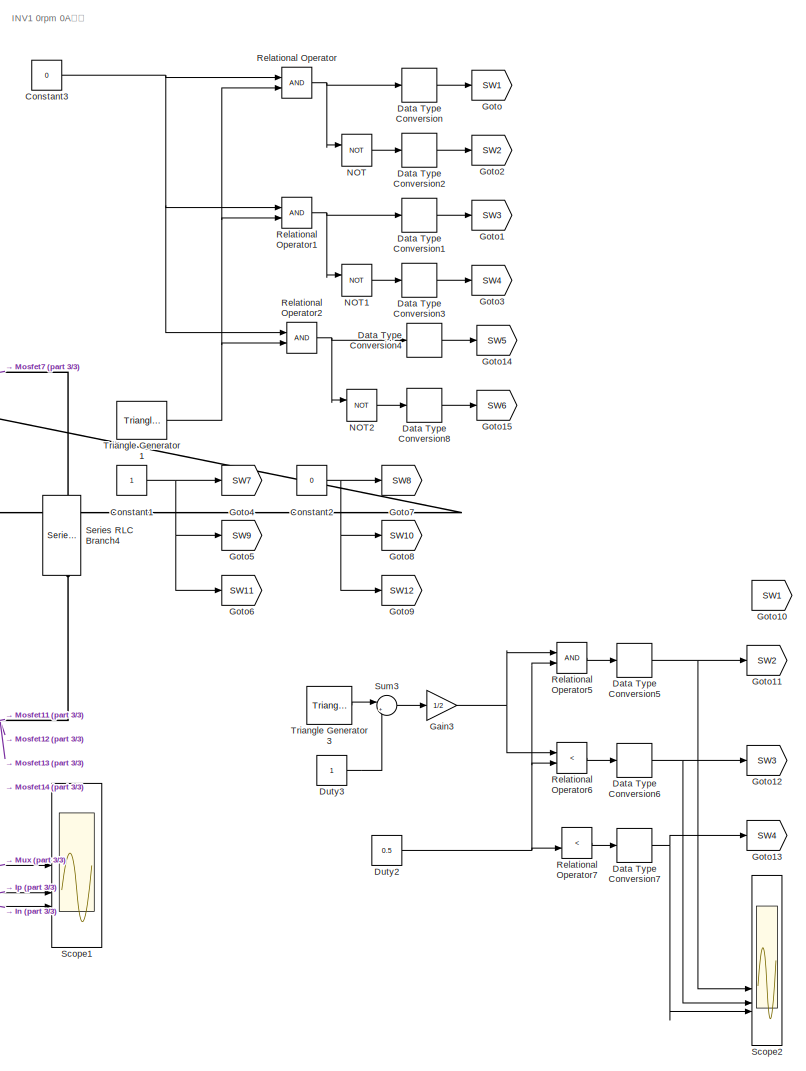
[diagram: root canvas - part 1/3, right side, full height]
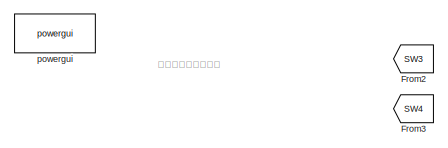
[diagram: root canvas - part 2/3, top left region]
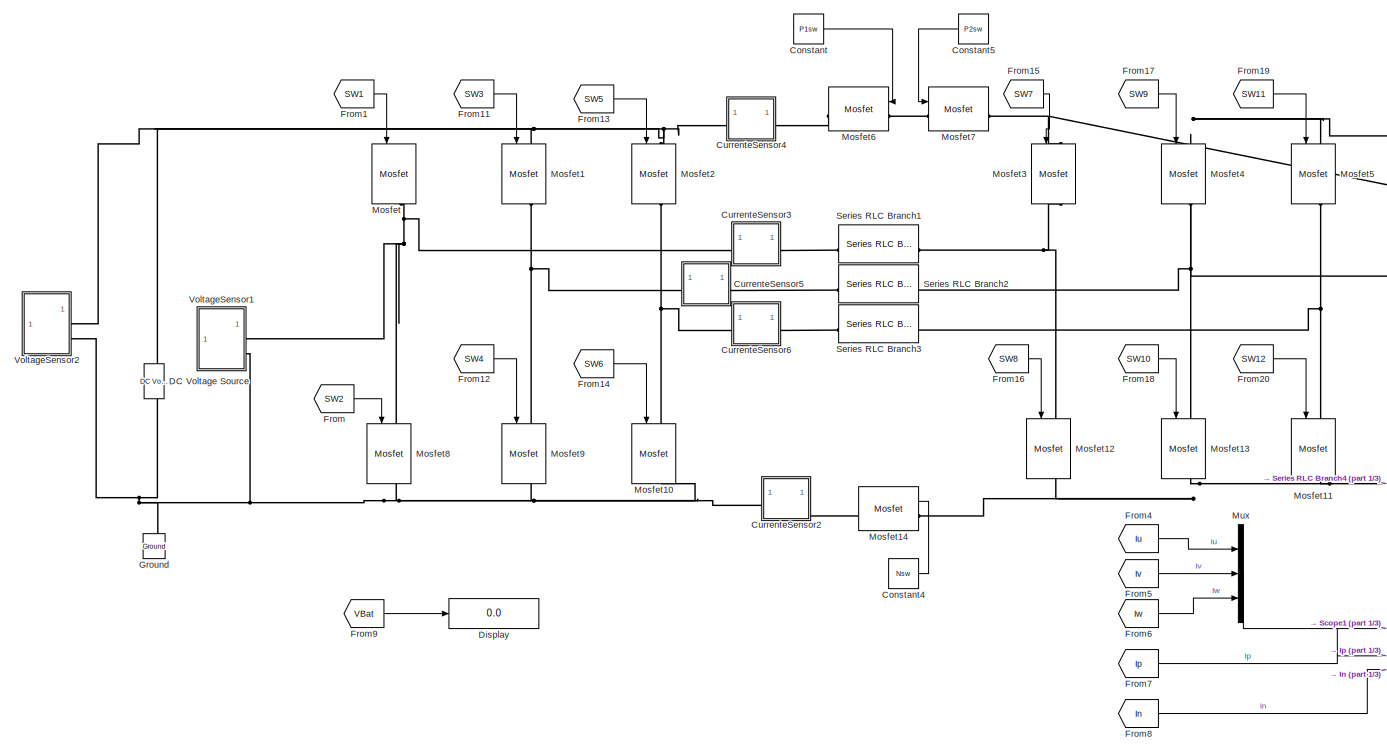
[diagram: root canvas - part 3/3, middle left region]
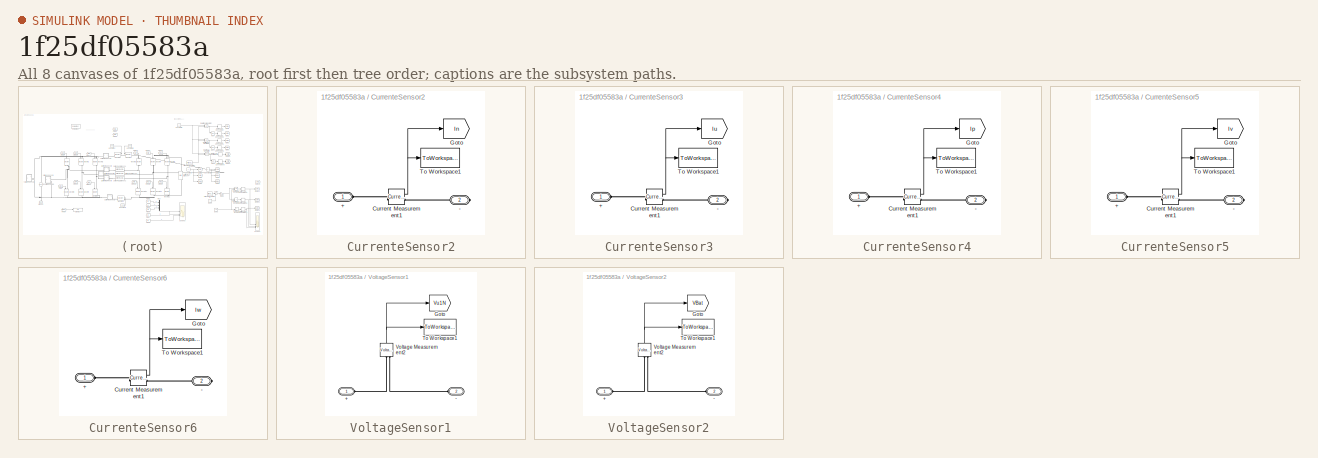
[diagram: thumbnail index - all 8 canvases of the model, root first then tree order]
MODEL slx_1f25df05583a
KIND model
CONFIG AbsTol = 1e-3
CONFIG EnableMultiTasking = on
CONFIG FixedStep = auto
CONFIG MaxStep = auto
CONFIG MinStep = auto
CONFIG RelTol = 1e-3
CONFIG SampleTimeConstraint = Unconstrained
CONFIG SolverName = VariableStepAuto
CONFIG StartTime = 0.0
CONFIG StopTime = 0.1
BLOCK [Constant] Constant
  Value = P1sw
BLOCK [Constant] Constant1
BLOCK [Constant] Constant2
  Value = 0
BLOCK [Constant] Constant3
  Value = 0
BLOCK [Constant] Constant4
  Value = Nsw
BLOCK [Constant] Constant5
  NameLocation = top
  Value = P2sw
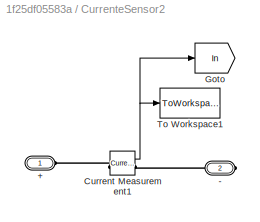
BLOCK [SubSystem] CurrenteSensor2
  AttributesFormatString = %<VariableName>
  NameLocation = top
BLOCK [PMIOPort] CurrenteSensor2/+
  Side = Left
BLOCK [PMIOPort] CurrenteSensor2/-
  Port = 2
  Side = Right
BLOCK [Reference] CurrenteSensor2/Current Measurement1  REF=spsCurrentMeasurementLib/Current Measurement
  LibrarySourceBlock = sps_lib/Sensors and Measurements/Current Measurement
  SourceBlock = spsCurrentMeasurementLib/Current Measurement
  SourceType = Current Measurement
  UserDataPersistent = on
BLOCK [Goto] CurrenteSensor2/Goto
  GotoTag = In
  TagVisibility = global
BLOCK [ToWorkspace] CurrenteSensor2/To Workspace1
  FixptAsFi = on
  MaxDataPoints = inf
  SampleTime = SampleTime
  VariableName = In
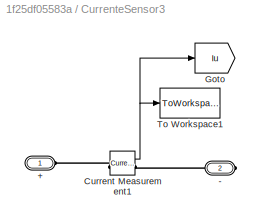
BLOCK [SubSystem] CurrenteSensor3
  AttributesFormatString = %<VariableName>
BLOCK [PMIOPort] CurrenteSensor3/+
  Side = Left
BLOCK [PMIOPort] CurrenteSensor3/-
  Port = 2
  Side = Right
BLOCK [Reference] CurrenteSensor3/Current Measurement1  REF=spsCurrentMeasurementLib/Current Measurement
  LibrarySourceBlock = sps_lib/Sensors and Measurements/Current Measurement
  SourceBlock = spsCurrentMeasurementLib/Current Measurement
  SourceType = Current Measurement
  UserDataPersistent = on
BLOCK [Goto] CurrenteSensor3/Goto
  GotoTag = Iu
  TagVisibility = global
BLOCK [ToWorkspace] CurrenteSensor3/To Workspace1
  FixptAsFi = on
  MaxDataPoints = inf
  SampleTime = SampleTime
  VariableName = Iu
BLOCK [SubSystem] CurrenteSensor4
  AttributesFormatString = %<VariableName>
BLOCK [PMIOPort] CurrenteSensor4/+
  Side = Left
BLOCK [PMIOPort] CurrenteSensor4/-
  Port = 2
  Side = Right
BLOCK [Reference] CurrenteSensor4/Current Measurement1  REF=spsCurrentMeasurementLib/Current Measurement
  LibrarySourceBlock = sps_lib/Sensors and Measurements/Current Measurement
  SourceBlock = spsCurrentMeasurementLib/Current Measurement
  SourceType = Current Measurement
  UserDataPersistent = on
BLOCK [Goto] CurrenteSensor4/Goto
  GotoTag = Ip
  TagVisibility = global
BLOCK [ToWorkspace] CurrenteSensor4/To Workspace1
  FixptAsFi = on
  MaxDataPoints = inf
  SampleTime = SampleTime
  VariableName = Ip
BLOCK [SubSystem] CurrenteSensor5
  AttributesFormatString = %<VariableName>
BLOCK [PMIOPort] CurrenteSensor5/+
  Side = Left
BLOCK [PMIOPort] CurrenteSensor5/-
  Port = 2
  Side = Right
BLOCK [Reference] CurrenteSensor5/Current Measurement1  REF=spsCurrentMeasurementLib/Current Measurement
  LibrarySourceBlock = sps_lib/Sensors and Measurements/Current Measurement
  SourceBlock = spsCurrentMeasurementLib/Current Measurement
  SourceType = Current Measurement
  UserDataPersistent = on
BLOCK [Goto] CurrenteSensor5/Goto
  GotoTag = Iv
  TagVisibility = global
BLOCK [ToWorkspace] CurrenteSensor5/To Workspace1
  FixptAsFi = on
  MaxDataPoints = inf
  SampleTime = SampleTime
  VariableName = Iv
BLOCK [SubSystem] CurrenteSensor6
  AttributesFormatString = %<VariableName>
BLOCK [PMIOPort] CurrenteSensor6/+
  Side = Left
BLOCK [PMIOPort] CurrenteSensor6/-
  Port = 2
  Side = Right
BLOCK [Reference] CurrenteSensor6/Current Measurement1  REF=spsCurrentMeasurementLib/Current Measurement
  LibrarySourceBlock = sps_lib/Sensors and Measurements/Current Measurement
  SourceBlock = spsCurrentMeasurementLib/Current Measurement
  SourceType = Current Measurement
  UserDataPersistent = on
BLOCK [Goto] CurrenteSensor6/Goto
  GotoTag = Iw
  TagVisibility = global
BLOCK [ToWorkspace] CurrenteSensor6/To Workspace1
  FixptAsFi = on
  MaxDataPoints = inf
  SampleTime = SampleTime
  VariableName = Iw
BLOCK [Reference] DC Voltage Source  REF=spsDCVoltageSourceLib/DC Voltage Source
  AttributesFormatString = DC = %<Amplitude> V
  LibrarySourceBlock = sps_lib/Sources/DC Voltage Source
  NameLocation = right
  SourceBlock = spsDCVoltageSourceLib/DC Voltage Source
  SourceType = DC Voltage Source
BLOCK [DataTypeConversion] Data Type Conversion
  RndMeth = Floor
  SaturateOnIntegerOverflow = off
BLOCK [DataTypeConversion] Data Type Conversion1
  RndMeth = Floor
  SaturateOnIntegerOverflow = off
BLOCK [DataTypeConversion] Data Type Conversion2
  RndMeth = Floor
  SaturateOnIntegerOverflow = off
BLOCK [DataTypeConversion] Data Type Conversion3
  RndMeth = Floor
  SaturateOnIntegerOverflow = off
BLOCK [DataTypeConversion] Data Type Conversion4
  RndMeth = Floor
  SaturateOnIntegerOverflow = off
BLOCK [DataTypeConversion] Data Type Conversion5
  Commented = on
  RndMeth = Floor
  SaturateOnIntegerOverflow = off
BLOCK [DataTypeConversion] Data Type Conversion6
  Commented = on
  RndMeth = Floor
  SaturateOnIntegerOverflow = off
BLOCK [DataTypeConversion] Data Type Conversion7
  Commented = on
  RndMeth = Floor
  SaturateOnIntegerOverflow = off
BLOCK [DataTypeConversion] Data Type Conversion8
  RndMeth = Floor
  SaturateOnIntegerOverflow = off
BLOCK [Display] Display
  Decimation = 1
BLOCK [Constant] Duty2
  Commented = on
  Value = 0.5
BLOCK [Constant] Duty3
  Commented = on
BLOCK [From] From
  GotoTag = SW2
BLOCK [From] From1
  GotoTag = SW1
BLOCK [From] From11
  GotoTag = SW3
BLOCK [From] From12
  GotoTag = SW4
BLOCK [From] From13
  GotoTag = SW5
BLOCK [From] From14
  GotoTag = SW6
BLOCK [From] From15
  GotoTag = SW7
BLOCK [From] From16
  GotoTag = SW8
BLOCK [From] From17
  GotoTag = SW9
BLOCK [From] From18
  GotoTag = SW10
BLOCK [From] From19
  GotoTag = SW11
BLOCK [From] From2
  Commented = on
  GotoTag = SW3
BLOCK [From] From20
  GotoTag = SW12
BLOCK [From] From3
  Commented = on
  GotoTag = SW4
BLOCK [From] From4
  GotoTag = Iu
  TagVisibility = global
BLOCK [From] From5
  GotoTag = Iv
  TagVisibility = global
BLOCK [From] From6
  GotoTag = Iw
  TagVisibility = global
BLOCK [From] From7
  GotoTag = Ip
  TagVisibility = global
BLOCK [From] From8
  GotoTag = In
  TagVisibility = global
BLOCK [From] From9
  GotoTag = VBat
  TagVisibility = global
BLOCK [Gain] Gain3
  Commented = on
  Gain = 1/2
BLOCK [Goto] Goto
  GotoTag = SW1
BLOCK [Goto] Goto1
  GotoTag = SW3
BLOCK [Goto] Goto10
  Commented = on
  GotoTag = SW1
BLOCK [Goto] Goto11
  Commented = on
  GotoTag = SW2
BLOCK [Goto] Goto12
  Commented = on
  GotoTag = SW3
BLOCK [Goto] Goto13
  Commented = on
  GotoTag = SW4
BLOCK [Goto] Goto14
  GotoTag = SW5
BLOCK [Goto] Goto15
  GotoTag = SW6
BLOCK [Goto] Goto2
  GotoTag = SW2
BLOCK [Goto] Goto3
  GotoTag = SW4
BLOCK [Goto] Goto4
  GotoTag = SW7
BLOCK [Goto] Goto5
  GotoTag = SW9
BLOCK [Goto] Goto6
  GotoTag = SW11
BLOCK [Goto] Goto7
  GotoTag = SW8
BLOCK [Goto] Goto8
  GotoTag = SW10
BLOCK [Goto] Goto9
  GotoTag = SW12
BLOCK [Reference] Ground  REF=spsGroundLib/Ground
  LibrarySourceBlock = sps_lib/Utilities/Ground
  NameLocation = right
  SourceBlock = spsGroundLib/Ground
  SourceType = Ground
BLOCK [Reference] Mosfet  REF=spsMosfetLib/Mosfet
  LibrarySourceBlock = sps_lib/Power Electronics/Mosfet
  NameLocation = left
  SourceBlock = spsMosfetLib/Mosfet
  SourceType = Mosfet
BLOCK [Reference] Mosfet1  REF=spsMosfetLib/Mosfet
  LibrarySourceBlock = sps_lib/Power Electronics/Mosfet
  NameLocation = left
  SourceBlock = spsMosfetLib/Mosfet
  SourceType = Mosfet
BLOCK [Reference] Mosfet10  REF=spsMosfetLib/Mosfet
  LibrarySourceBlock = sps_lib/Power Electronics/Mosfet
  NameLocation = left
  SourceBlock = spsMosfetLib/Mosfet
  SourceType = Mosfet
BLOCK [Reference] Mosfet11  REF=spsMosfetLib/Mosfet
  LibrarySourceBlock = sps_lib/Power Electronics/Mosfet
  NameLocation = left
  SourceBlock = spsMosfetLib/Mosfet
  SourceType = Mosfet
BLOCK [Reference] Mosfet12  REF=spsMosfetLib/Mosfet
  LibrarySourceBlock = sps_lib/Power Electronics/Mosfet
  NameLocation = left
  SourceBlock = spsMosfetLib/Mosfet
  SourceType = Mosfet
BLOCK [Reference] Mosfet13  REF=spsMosfetLib/Mosfet
  LibrarySourceBlock = sps_lib/Power Electronics/Mosfet
  NameLocation = left
  SourceBlock = spsMosfetLib/Mosfet
  SourceType = Mosfet
BLOCK [Reference] Mosfet14  REF=spsMosfetLib/Mosfet
  LibrarySourceBlock = sps_lib/Power Electronics/Mosfet
  SourceBlock = spsMosfetLib/Mosfet
  SourceType = Mosfet
BLOCK [Reference] Mosfet2  REF=spsMosfetLib/Mosfet
  LibrarySourceBlock = sps_lib/Power Electronics/Mosfet
  NameLocation = left
  SourceBlock = spsMosfetLib/Mosfet
  SourceType = Mosfet
BLOCK [Reference] Mosfet3  REF=spsMosfetLib/Mosfet
  LibrarySourceBlock = sps_lib/Power Electronics/Mosfet
  NameLocation = left
  SourceBlock = spsMosfetLib/Mosfet
  SourceType = Mosfet
BLOCK [Reference] Mosfet4  REF=spsMosfetLib/Mosfet
  LibrarySourceBlock = sps_lib/Power Electronics/Mosfet
  NameLocation = left
  SourceBlock = spsMosfetLib/Mosfet
  SourceType = Mosfet
BLOCK [Reference] Mosfet5  REF=spsMosfetLib/Mosfet
  LibrarySourceBlock = sps_lib/Power Electronics/Mosfet
  NameLocation = left
  SourceBlock = spsMosfetLib/Mosfet
  SourceType = Mosfet
BLOCK [Reference] Mosfet6  REF=spsMosfetLib/Mosfet
  LibrarySourceBlock = sps_lib/Power Electronics/Mosfet
  NameLocation = top
  SourceBlock = spsMosfetLib/Mosfet
  SourceType = Mosfet
BLOCK [Reference] Mosfet7  REF=spsMosfetLib/Mosfet
  LibrarySourceBlock = sps_lib/Power Electronics/Mosfet
  NameLocation = top
  SourceBlock = spsMosfetLib/Mosfet
  SourceType = Mosfet
BLOCK [Reference] Mosfet8  REF=spsMosfetLib/Mosfet
  LibrarySourceBlock = sps_lib/Power Electronics/Mosfet
  NameLocation = left
  SourceBlock = spsMosfetLib/Mosfet
  SourceType = Mosfet
BLOCK [Reference] Mosfet9  REF=spsMosfetLib/Mosfet
  LibrarySourceBlock = sps_lib/Power Electronics/Mosfet
  NameLocation = left
  SourceBlock = spsMosfetLib/Mosfet
  SourceType = Mosfet
BLOCK [Mux] Mux
  DisplayOption = bar
  Inputs = 3
BLOCK [Logic] NOT
  AllPortsSameDT = off
  IconShape = distinctive
  Operator = NOT
  OutDataTypeStr = boolean
BLOCK [Logic] NOT1
  AllPortsSameDT = off
  IconShape = distinctive
  Operator = NOT
  OutDataTypeStr = boolean
BLOCK [Logic] NOT2
  AllPortsSameDT = off
  IconShape = distinctive
  Operator = NOT
  OutDataTypeStr = boolean
BLOCK [RelationalOperator] Relational Operator
  InputSameDT = off
  OutDataTypeStr = boolean
  RndMeth = Simplest
BLOCK [RelationalOperator] Relational Operator1
  InputSameDT = off
  OutDataTypeStr = boolean
  RndMeth = Simplest
BLOCK [RelationalOperator] Relational Operator2
  InputSameDT = off
  OutDataTypeStr = boolean
  RndMeth = Simplest
BLOCK [RelationalOperator] Relational Operator5
  Commented = on
  InputSameDT = off
  OutDataTypeStr = boolean
  RndMeth = Simplest
BLOCK [RelationalOperator] Relational Operator6
  Commented = on
  InputSameDT = off
  Operator = <
  OutDataTypeStr = boolean
  RndMeth = Simplest
BLOCK [RelationalOperator] Relational Operator7
  Commented = on
  InputSameDT = off
  Operator = <
  OutDataTypeStr = boolean
  RndMeth = Simplest
BLOCK [Scope] Scope1
  Floating = off
  NumInputPorts = 3
  ScopeSpecificationString = Simulink.scopes.TimeScopeBlockCfg('CurrentConfiguration', extmgr.ConfigurationSet(extmgr.Configuration('Core','General UI',true),extmgr.Configuration('Core','Source UI',true),extmgr.Configuration('Sources','WiredSimulink',true,'DataLoggingVariableName','ScopeData1'),extmgr.Configuration('Visuals','Time Domain',true,'SerializedDisplays',{struct('MinYLimReal','-1.84683','MaxYLimReal','1.61041','YLab...<+2696ch>
BLOCK [Scope] Scope2
  Commented = on
  Floating = off
  NumInputPorts = 4
  ScopeSpecificationString = Simulink.scopes.TimeScopeBlockCfg('CurrentConfiguration', extmgr.ConfigurationSet(extmgr.Configuration('Core','General UI',true),extmgr.Configuration('Core','Source UI',true),extmgr.Configuration('Sources','WiredSimulink',true,'DataLoggingVariableName','ScopeData1','DataLoggingLimitDataPoints',true,'DataLoggingMaxPoints','10000'),extmgr.Configuration('Visuals','Time Domain',true,'SerializedDisplay...<+3492ch>
BLOCK [Reference] Series RLC Branch1  REF=spsSeriesRLCBranchLib/Series RLC Branch
  AttributesFormatString = L=%<Inductance> H\nR=%<Resistance> Ohm
  LibrarySourceBlock = sps_lib/Passives/Series RLC Branch
  SourceBlock = spsSeriesRLCBranchLib/Series RLC Branch
  SourceType = Series RLC Branch
BLOCK [Reference] Series RLC Branch2  REF=spsSeriesRLCBranchLib/Series RLC Branch
  AttributesFormatString = L=%<Inductance> H\nR=%<Resistance> Ohm
  LibrarySourceBlock = sps_lib/Passives/Series RLC Branch
  SourceBlock = spsSeriesRLCBranchLib/Series RLC Branch
  SourceType = Series RLC Branch
BLOCK [Reference] Series RLC Branch3  REF=spsSeriesRLCBranchLib/Series RLC Branch
  AttributesFormatString = L=%<Inductance> H\nR=%<Resistance> Ohm
  LibrarySourceBlock = sps_lib/Passives/Series RLC Branch
  SourceBlock = spsSeriesRLCBranchLib/Series RLC Branch
  SourceType = Series RLC Branch
BLOCK [Reference] Series RLC Branch4  REF=spsSeriesRLCBranchLib/Series RLC Branch
  AttributesFormatString = C=%<Capacitance> F
  LibrarySourceBlock = sps_lib/Passives/Series RLC Branch
  NameLocation = left
  SourceBlock = spsSeriesRLCBranchLib/Series RLC Branch
  SourceType = Series RLC Branch
BLOCK [Sum] Sum3
  Commented = on
  Inputs = |++
BLOCK [Reference] Triangle Generator1  REF=spsTriangleGeneratorLib/Triangle
Generator
  AttributesFormatString = Freq = %<Freq> Hz
  LibrarySourceBlock = sps_lib/Sources/Signal Generator Sources/Triangle\nGenerator
  SourceBlock = spsTriangleGeneratorLib/Triangle\nGenerator
  SourceType = Triangle Generator
BLOCK [Reference] Triangle Generator3  REF=spsTriangleGeneratorLib/Triangle
Generator
  Commented = on
  LibrarySourceBlock = sps_lib/Sources/Signal Generator Sources/Triangle\nGenerator
  SourceBlock = spsTriangleGeneratorLib/Triangle\nGenerator
  SourceType = Triangle Generator
BLOCK [SubSystem] VoltageSensor1
  AttributesFormatString = %<VariableName>
BLOCK [PMIOPort] VoltageSensor1/+
  Side = Left
BLOCK [PMIOPort] VoltageSensor1/-
  Port = 2
  Side = Left
BLOCK [Goto] VoltageSensor1/Goto
  GotoTag = Vu1N
  TagVisibility = global
BLOCK [ToWorkspace] VoltageSensor1/To Workspace1
  FixptAsFi = on
  MaxDataPoints = inf
  SampleTime = SampleTime
  VariableName = Vu1N
BLOCK [Reference] VoltageSensor1/Voltage Measurement2  REF=spsVoltageMeasurementLib/Voltage Measurement
  LibrarySourceBlock = sps_lib/Sensors and Measurements/Voltage Measurement
  NameLocation = right
  SourceBlock = spsVoltageMeasurementLib/Voltage Measurement
  SourceType = Voltage Measurement
  UserDataPersistent = on
BLOCK [SubSystem] VoltageSensor2
  AttributesFormatString = %<VariableName>
BLOCK [PMIOPort] VoltageSensor2/+
  Side = Left
BLOCK [PMIOPort] VoltageSensor2/-
  Port = 2
  Side = Left
BLOCK [Goto] VoltageSensor2/Goto
  GotoTag = VBat
  TagVisibility = global
BLOCK [ToWorkspace] VoltageSensor2/To Workspace1
  FixptAsFi = on
  MaxDataPoints = inf
  SampleTime = SampleTime
  VariableName = VBat
BLOCK [Reference] VoltageSensor2/Voltage Measurement2  REF=spsVoltageMeasurementLib/Voltage Measurement
  LibrarySourceBlock = sps_lib/Sensors and Measurements/Voltage Measurement
  NameLocation = right
  SourceBlock = spsVoltageMeasurementLib/Voltage Measurement
  SourceType = Voltage Measurement
  UserDataPersistent = on
BLOCK [Reference] powergui  REF=spspowerguiLib/powergui
  LibrarySourceBlock = sps_lib/powergui
  Priority = 1
  SourceBlock = spspowerguiLib/powergui
  SourceType = PSB option menu block
ANNOTATION (root): INV1 0rpm 0A打ち
ANNOTATION (root): もう少し細かな話で
NET Constant1:1 -> Goto4:1, Goto5:1, Goto6:1
NET Constant2:1 -> Goto7:1, Goto8:1, Goto9:1
NET Constant3:1 -> Relational Operator1:1, Relational Operator2:1, Relational Operator:1
LINE Constant4:1 -> Mosfet14:1
LINE Constant5:1 -> Mosfet7:1
LINE Constant:1 -> Mosfet6:1
NET CurrenteSensor2/Current Measurement1:1 -> CurrenteSensor2/Goto:1, CurrenteSensor2/To Workspace1:1
NET CurrenteSensor3/Current Measurement1:1 -> CurrenteSensor3/Goto:1, CurrenteSensor3/To Workspace1:1
NET CurrenteSensor4/Current Measurement1:1 -> CurrenteSensor4/Goto:1, CurrenteSensor4/To Workspace1:1
NET CurrenteSensor5/Current Measurement1:1 -> CurrenteSensor5/Goto:1, CurrenteSensor5/To Workspace1:1
NET CurrenteSensor6/Current Measurement1:1 -> CurrenteSensor6/Goto:1, CurrenteSensor6/To Workspace1:1
LINE Data Type Conversion1:1 -> Goto1:1
LINE Data Type Conversion2:1 -> Goto2:1
LINE Data Type Conversion3:1 -> Goto3:1
LINE Data Type Conversion4:1 -> Goto14:1
NET Data Type Conversion5:1 -> Goto11:1, Scope2:2
NET Data Type Conversion6:1 -> Goto12:1, Scope2:3
NET Data Type Conversion7:1 -> Goto13:1, Scope2:4
LINE Data Type Conversion8:1 -> Goto15:1
LINE Data Type Conversion:1 -> Goto:1
NET Duty2:1 -> Relational Operator5:2, Relational Operator6:2, Relational Operator7:2
LINE Duty3:1 -> Sum3:2
LINE From11:1 -> Mosfet1:1
LINE From12:1 -> Mosfet9:1
LINE From13:1 -> Mosfet2:1
LINE From14:1 -> Mosfet10:1
LINE From15:1 -> Mosfet3:1
LINE From16:1 -> Mosfet12:1
LINE From17:1 -> Mosfet4:1
LINE From18:1 -> Mosfet13:1
LINE From19:1 -> Mosfet5:1
LINE From1:1 -> Mosfet:1
LINE From20:1 -> Mosfet11:1
LINE From4:1 -> Mux:1
LINE From5:1 -> Mux:2
LINE From6:1 -> Mux:3
LINE From7:1 -> Scope1:2
LINE From8:1 -> Scope1:3
LINE From9:1 -> Display:1
LINE From:1 -> Mosfet8:1
NET Gain3:1 -> Relational Operator5:1, Relational Operator6:1
LINE Mux:1 -> Scope1:1
LINE NOT1:1 -> Data Type Conversion3:1
LINE NOT2:1 -> Data Type Conversion8:1
LINE NOT:1 -> Data Type Conversion2:1
NET Relational Operator1:1 -> Data Type Conversion1:1, NOT1:1
NET Relational Operator2:1 -> Data Type Conversion4:1, NOT2:1
LINE Relational Operator5:1 -> Data Type Conversion5:1
LINE Relational Operator6:1 -> Data Type Conversion6:1
LINE Relational Operator7:1 -> Data Type Conversion7:1
NET Relational Operator:1 -> Data Type Conversion:1, NOT:1
LINE Sum3:1 -> Gain3:1
NET Triangle Generator1:1 -> Relational Operator1:2, Relational Operator2:2, Relational Operator:2
LINE Triangle Generator3:1 -> Sum3:1
NET VoltageSensor1/Voltage Measurement2:1 -> VoltageSensor1/Goto:1, VoltageSensor1/To Workspace1:1
NET VoltageSensor2/Voltage Measurement2:1 -> VoltageSensor2/Goto:1, VoltageSensor2/To Workspace1:1
PLINE CurrenteSensor2/+:RConn1 -- CurrenteSensor2/Current Measurement1:LConn1
PLINE CurrenteSensor2/-:RConn1 -- CurrenteSensor2/Current Measurement1:RConn1
PLINE CurrenteSensor2:LConn1 -- Mosfet14:RConn1
PNET net1: CurrenteSensor2:RConn1 -- DC Voltage Source:LConn1 -- Ground:LConn1 -- Mosfet10:RConn1 -- Mosfet8:RConn1 -- Mosfet9:RConn1 -- VoltageSensor1:LConn2 -- VoltageSensor2:LConn2
PLINE CurrenteSensor3/+:RConn1 -- CurrenteSensor3/Current Measurement1:LConn1
PLINE CurrenteSensor3/-:RConn1 -- CurrenteSensor3/Current Measurement1:RConn1
PNET net2: CurrenteSensor3:LConn1 -- Mosfet8:LConn1 -- Mosfet:RConn1 -- VoltageSensor1:LConn1
PLINE CurrenteSensor3:RConn1 -- Series RLC Branch1:LConn1
PLINE CurrenteSensor4/+:RConn1 -- CurrenteSensor4/Current Measurement1:LConn1
PLINE CurrenteSensor4/-:RConn1 -- CurrenteSensor4/Current Measurement1:RConn1
PNET net3: CurrenteSensor4:LConn1 -- DC Voltage Source:RConn1 -- Mosfet1:LConn1 -- Mosfet2:LConn1 -- VoltageSensor2:LConn1
PLINE CurrenteSensor4:RConn1 -- Mosfet6:RConn1
PLINE CurrenteSensor5/+:RConn1 -- CurrenteSensor5/Current Measurement1:LConn1
PLINE CurrenteSensor5/-:RConn1 -- CurrenteSensor5/Current Measurement1:RConn1
PNET net4: CurrenteSensor5:LConn1 -- Mosfet1:RConn1 -- Mosfet9:LConn1
PLINE CurrenteSensor5:RConn1 -- Series RLC Branch2:LConn1
PLINE CurrenteSensor6/+:RConn1 -- CurrenteSensor6/Current Measurement1:LConn1
PLINE CurrenteSensor6/-:RConn1 -- CurrenteSensor6/Current Measurement1:RConn1
PNET net5: CurrenteSensor6:LConn1 -- Mosfet10:LConn1 -- Mosfet2:RConn1
PLINE CurrenteSensor6:RConn1 -- Series RLC Branch3:LConn1
PNET net6: Mosfet11:LConn1 -- Mosfet5:RConn1 -- Series RLC Branch3:RConn1
PNET net7: Mosfet11:RConn1 -- Mosfet12:RConn1 -- Mosfet13:RConn1 -- Mosfet14:LConn1 -- Series RLC Branch4:RConn1
PNET net8: Mosfet12:LConn1 -- Mosfet3:RConn1 -- Series RLC Branch1:RConn1
PNET net9: Mosfet13:LConn1 -- Mosfet4:RConn1 -- Series RLC Branch2:RConn1
PNET net10: Mosfet3:LConn1 -- Mosfet4:LConn1 -- Mosfet5:LConn1 -- Mosfet7:RConn1 -- Series RLC Branch4:LConn1
PLINE Mosfet6:LConn1 -- Mosfet7:LConn1
PLINE VoltageSensor1/+:RConn1 -- VoltageSensor1/Voltage Measurement2:LConn1
PLINE VoltageSensor1/-:RConn1 -- VoltageSensor1/Voltage Measurement2:LConn2
PLINE VoltageSensor2/+:RConn1 -- VoltageSensor2/Voltage Measurement2:LConn1
PLINE VoltageSensor2/-:RConn1 -- VoltageSensor2/Voltage Measurement2:LConn2
note: NET lines group one-source signal fan-out (src -> all destinations, sorted); 1:1 wires keep LINE; PNET lines group multi-terminal physical nets as a canonical sorted terminal list (undirected conserving connections); 2-terminal nets keep the pairwise PLINE form
